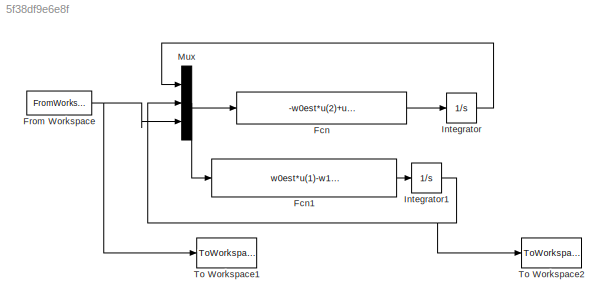
MODEL slx_5f38df9e6e8f
KIND model
CONFIG AbsTol = auto
CONFIG EnableMultiTasking = on
CONFIG FixedStep = auto
CONFIG MaxStep = auto
CONFIG MinStep = auto
CONFIG RelTol = 1e-3
CONFIG SampleTimeConstraint = Unconstrained
CONFIG Solver = VariableStepAuto
CONFIG SolverName = VariableStepAuto
CONFIG StartTime = 0.0
CONFIG StopTime = 20
BLOCK [Fcn] Fcn
  Expr = -w0est*u(2)+u(3)*w0est*u(2)+best
BLOCK [Fcn] Fcn1
  Expr = w0est*u(1)-w1est*u(2)-u(3)*w0est*u(1)
BLOCK [FromWorkspace] From Workspace
  SampleTime = 0.05
  VariableName = [Tiempo Entrada]
  ZeroCross = on
BLOCK [Integrator] Integrator
  Ports = [1, 1]
BLOCK [Integrator] Integrator1
  Ports = [1, 1]
BLOCK [Mux] Mux
  DisplayOption = bar
  Inputs = 3
  Ports = [3, 1]
BLOCK [ToWorkspace] To Workspace1
  MaxDataPoints = inf
  Ports = [1]
  SampleTime = 0.05
  VariableName = EntradaEst
BLOCK [ToWorkspace] To Workspace2
  MaxDataPoints = inf
  Ports = [1]
  SampleTime = 0.05
  VariableName = SalidaEst
LINE Fcn1:1 -> Integrator1:1
LINE Fcn:1 -> Integrator:1
NET From Workspace:1 -> Mux:3, To Workspace1:1
NET Integrator1:1 -> Mux:2, To Workspace2:1
LINE Integrator:1 -> Mux:1
NET Mux:1 -> Fcn1:1, Fcn:1
note: NET lines group one-source signal fan-out (src -> all destinations, sorted); 1:1 wires keep LINE
